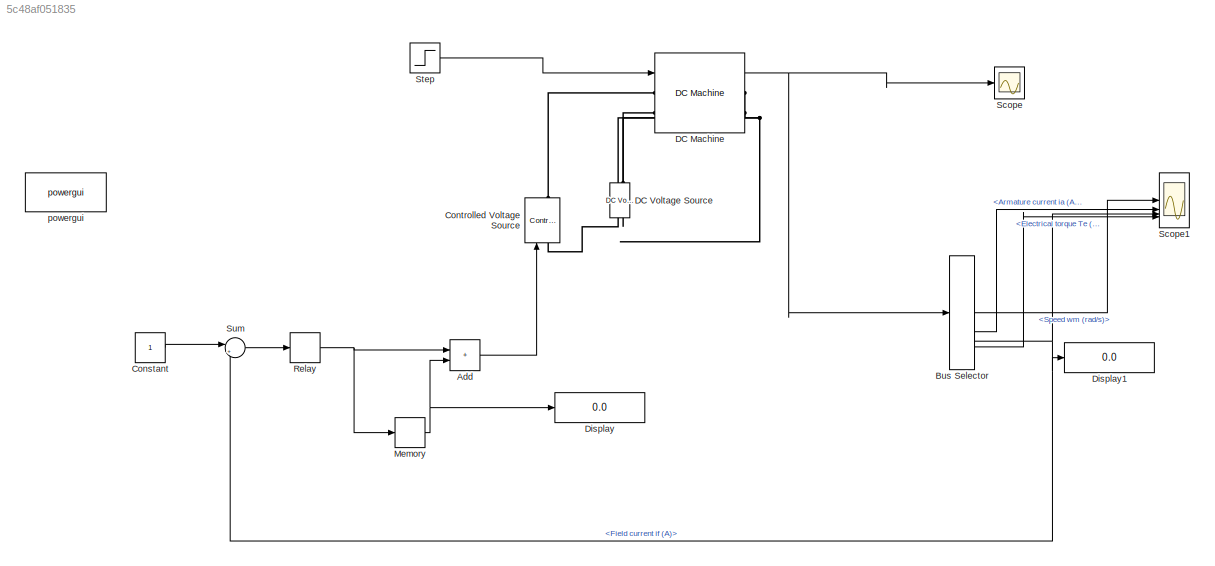
MODEL slx_5c48af051835
KIND model
CONFIG AbsTol = auto
CONFIG EnableMultiTasking = off
CONFIG FixedStep = auto
CONFIG MaxStep = auto
CONFIG MinStep = auto
CONFIG RelTol = 1e-3
CONFIG SampleTimeConstraint = Unconstrained
CONFIG SolverName = VariableStepAuto
CONFIG StartTime = 0.0
CONFIG StopTime = 10.0
BLOCK [Sum] Add
  IconShape = rectangular
BLOCK [BusSelector] Bus Selector
  OutputSignals = Speed wm (rad/s),Armature current ia (A),Field current if (A),Electrical torque Te (n m)
BLOCK [Constant] Constant
BLOCK [Reference] Controlled Voltage Source  REF=spsControlledVoltageSourceLib/Controlled Voltage Source
  LibrarySourceBlock = sps_lib/Sources/Controlled Voltage Source
  SourceBlock = spsControlledVoltageSourceLib/Controlled Voltage Source
  SourceType = Controlled Voltage Source
BLOCK [Reference] DC Machine  REF=spsDCMachineLib/DC Machine
  LibrarySourceBlock = sps_lib/Electrical Machines/DC Machine
  SourceBlock = spsDCMachineLib/DC Machine
  SourceType = DC machine
BLOCK [Reference] DC Voltage Source  REF=spsDCVoltageSourceLib/DC Voltage Source
  LibrarySourceBlock = sps_lib/Sources/DC Voltage Source
  SourceBlock = spsDCVoltageSourceLib/DC Voltage Source
  SourceType = DC Voltage Source
BLOCK [Display] Display
  Decimation = 1
BLOCK [Display] Display1
  Decimation = 1
BLOCK [Memory] Memory
BLOCK [Relay] Relay
BLOCK [Scope] Scope
  Floating = off
  NumInputPorts = 1
  ScopeSpecificationString = Simulink.scopes.TimeScopeBlockCfg('CurrentConfiguration', extmgr.ConfigurationSet(extmgr.Configuration('Core','General UI',true),extmgr.Configuration('Core','Source UI',true),extmgr.Configuration('Sources','WiredSimulink',true),extmgr.Configuration('Visuals','Time Domain',true,'SerializedDisplays',{struct('MinYLimReal','-0.25166','MaxYLimReal','2.26498','YLabelReal','','MinYLimMag','0.00000','MaxY...<+1517ch>
BLOCK [Scope] Scope1
  Floating = off
  NumInputPorts = 4
  ScopeSpecificationString = Simulink.scopes.TimeScopeBlockCfg('CurrentConfiguration', extmgr.ConfigurationSet(extmgr.Configuration('Core','General UI',true),extmgr.Configuration('Core','Source UI',true),extmgr.Configuration('Sources','WiredSimulink',true,'DataLoggingVariableName','ScopeData1'),extmgr.Configuration('Visuals','Time Domain',true,'SerializedDisplays',{struct('MinYLimReal','-0.25166','MaxYLimReal','2.26498','YLab...<+1519ch>
BLOCK [Step] Step
  SampleTime = 0
BLOCK [Sum] Sum
  Inputs = |++
BLOCK [Reference] powergui  REF=sps_lib/powergui
  Priority = 1
  SourceBlock = sps_lib/powergui
  SourceType = PSB option menu block
LINE Add:1 -> Controlled Voltage Source:1
LINE Bus Selector:1 -> Scope1:1
LINE Bus Selector:2 -> Scope1:2
NET Bus Selector:3 -> Display1:1, Scope1:3, Sum:2
LINE Bus Selector:4 -> Scope1:4
LINE Constant:1 -> Sum:1
NET DC Machine:1 -> Bus Selector:1, Scope:1
NET Memory:1 -> Add:2, Display:1
NET Relay:1 -> Add:1, Memory:1
LINE Step:1 -> DC Machine:1
LINE Sum:1 -> Relay:1
PNET net1: Controlled Voltage Source:LConn1 -- DC Machine:RConn1 -- DC Machine:RConn2 -- DC Voltage Source:LConn1
PLINE Controlled Voltage Source:RConn1 -- DC Machine:LConn1
PLINE DC Machine:LConn2 -- DC Voltage Source:RConn1
note: NET lines group one-source signal fan-out (src -> all destinations, sorted); 1:1 wires keep LINE; PNET lines group multi-terminal physical nets as a canonical sorted terminal list (undirected conserving connections); 2-terminal nets keep the pairwise PLINE form
